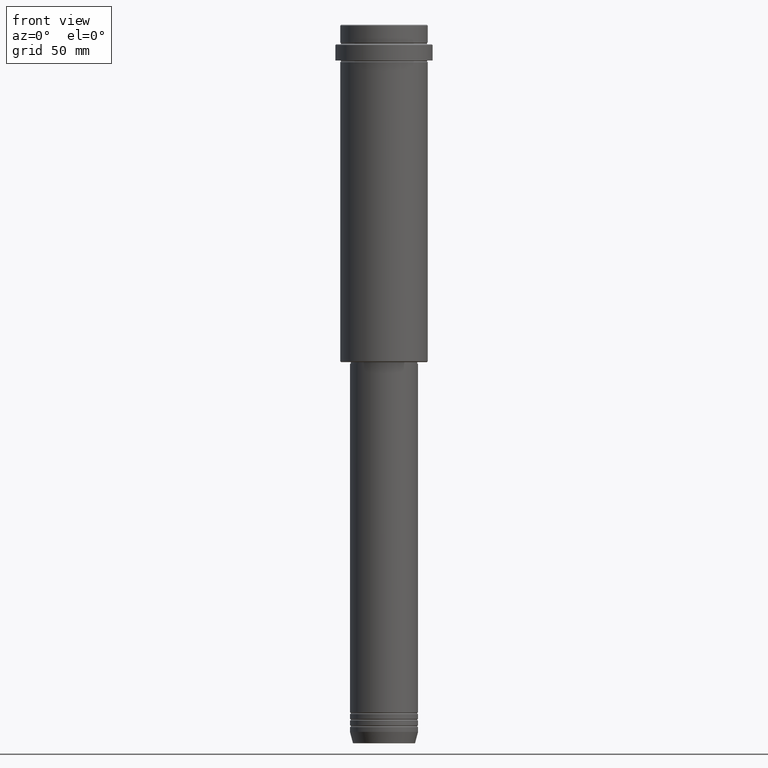
[diagram: clean part render]
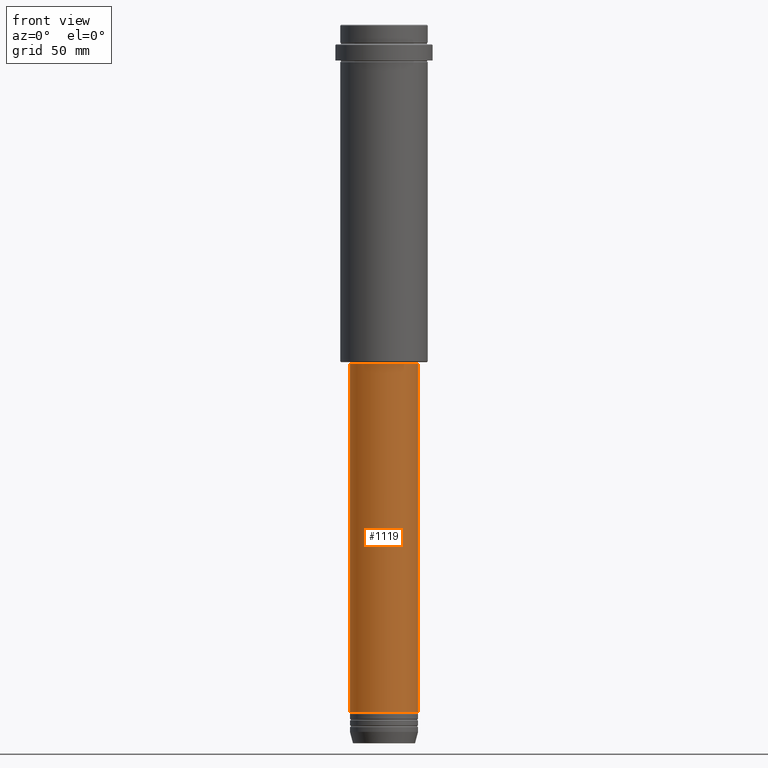
[diagram: same view with one face highlighted and labeled with its STEP entity id]
A machine part, front view. The second image highlights one B-rep face of the part: STEP entity #1119.
In plain terms, the highlighted cylindrical surface (edge-blend (fillet) strip) has radius 21 mm, axis along (-0, -0, 1).
Its self-contained STEP definition (entity closure, byte-faithful):
#31 = CYLINDRICAL_SURFACE ( 'NONE', #216, 20.99999999999999645 ) ;
#124 = CARTESIAN_POINT ( 'NONE',  ( -21.00000000000000000, 2.571758278209441661E-15, -423.9999999999998863 ) ) ;
#216 = AXIS2_PLACEMENT_3D ( 'NONE', #1341, #567, #1101 ) ;
#232 = FACE_OUTER_BOUND ( 'NONE', #1250, .T. ) ;
#273 = VECTOR ( 'NONE', #886, 1000.000000000000000 ) ;
#329 = CARTESIAN_POINT ( 'NONE',  ( 0.000000000000000000, 0.000000000000000000, -423.9999999999998863 ) ) ;
#450 = LINE ( 'NONE', #1327, #620 ) ;
#537 = ORIENTED_EDGE ( 'NONE', *, *, #1100, .T. ) ;
#567 = DIRECTION ( 'NONE',  ( -0.000000000000000000, -0.000000000000000000, 1.000000000000000000 ) ) ;
#574 = DIRECTION ( 'NONE',  ( -0.000000000000000000, -0.000000000000000000, 1.000000000000000000 ) ) ;
#615 = VERTEX_POINT ( 'NONE', #124 ) ;
#620 = VECTOR ( 'NONE', #574, 1000.000000000000000 ) ;
#640 = VERTEX_POINT ( 'NONE', #690 ) ;
#690 = CARTESIAN_POINT ( 'NONE',  ( 20.99999999999999645, 0.000000000000000000, -208.9999999999999432 ) ) ;
#749 = DIRECTION ( 'NONE',  ( -0.000000000000000000, -0.000000000000000000, 1.000000000000000000 ) ) ;
#757 = DIRECTION ( 'NONE',  ( 1.000000000000000000, 0.000000000000000000, 0.000000000000000000 ) ) ;
#767 = DIRECTION ( 'NONE',  ( 1.000000000000000000, 0.000000000000000000, 0.000000000000000000 ) ) ;
#779 = CARTESIAN_POINT ( 'NONE',  ( 20.99999999999999645, 0.000000000000000000, 0.000000000000000000 ) ) ;
#786 = CARTESIAN_POINT ( 'NONE',  ( -20.99999999999999645, 2.571758278209441267E-15, -208.9999999999999432 ) ) ;
#820 = CIRCLE ( 'NONE', #1005, 21.00000000000000000 ) ;
#886 = DIRECTION ( 'NONE',  ( -0.000000000000000000, -0.000000000000000000, 1.000000000000000000 ) ) ;
#930 = ORIENTED_EDGE ( 'NONE', *, *, #1031, .T. ) ;
#959 = VERTEX_POINT ( 'NONE', #1412 ) ;
#1004 = LINE ( 'NONE', #779, #273 ) ;
#1005 = AXIS2_PLACEMENT_3D ( 'NONE', #329, #1094, #767 ) ;
#1031 = EDGE_CURVE ( 'NONE', #959, #640, #1004, .T. ) ;
#1053 = EDGE_CURVE ( 'NONE', #615, #1414, #450, .T. ) ;
#1069 = ORIENTED_EDGE ( 'NONE', *, *, #1388, .F. ) ;
#1085 = ORIENTED_EDGE ( 'NONE', *, *, #1053, .F. ) ;
#1094 = DIRECTION ( 'NONE',  ( -0.000000000000000000, -0.000000000000000000, 1.000000000000000000 ) ) ;
#1100 = EDGE_CURVE ( 'NONE', #615, #959, #820, .T. ) ;
#1101 = DIRECTION ( 'NONE',  ( 1.000000000000000000, 0.000000000000000000, 0.000000000000000000 ) ) ;
#1119 = ADVANCED_FACE ( 'NONE', ( #232 ), #31, .T. ) ;
#1224 = AXIS2_PLACEMENT_3D ( 'NONE', #1317, #749, #757 ) ;
#1250 = EDGE_LOOP ( 'NONE', ( #1085, #537, #930, #1069 ) ) ;
#1317 = CARTESIAN_POINT ( 'NONE',  ( 0.000000000000000000, 0.000000000000000000, -208.9999999999999432 ) ) ;
#1327 = CARTESIAN_POINT ( 'NONE',  ( -20.99999999999999645, 2.571758278209441267E-15, 0.000000000000000000 ) ) ;
#1341 = CARTESIAN_POINT ( 'NONE',  ( 0.000000000000000000, 0.000000000000000000, 0.000000000000000000 ) ) ;
#1388 = EDGE_CURVE ( 'NONE', #1414, #640, #1400, .T. ) ;
#1400 = CIRCLE ( 'NONE', #1224, 20.99999999999999645 ) ;
#1412 = CARTESIAN_POINT ( 'NONE',  ( 21.00000000000000000, 0.000000000000000000, -423.9999999999998863 ) ) ;
#1414 = VERTEX_POINT ( 'NONE', #786 ) ;